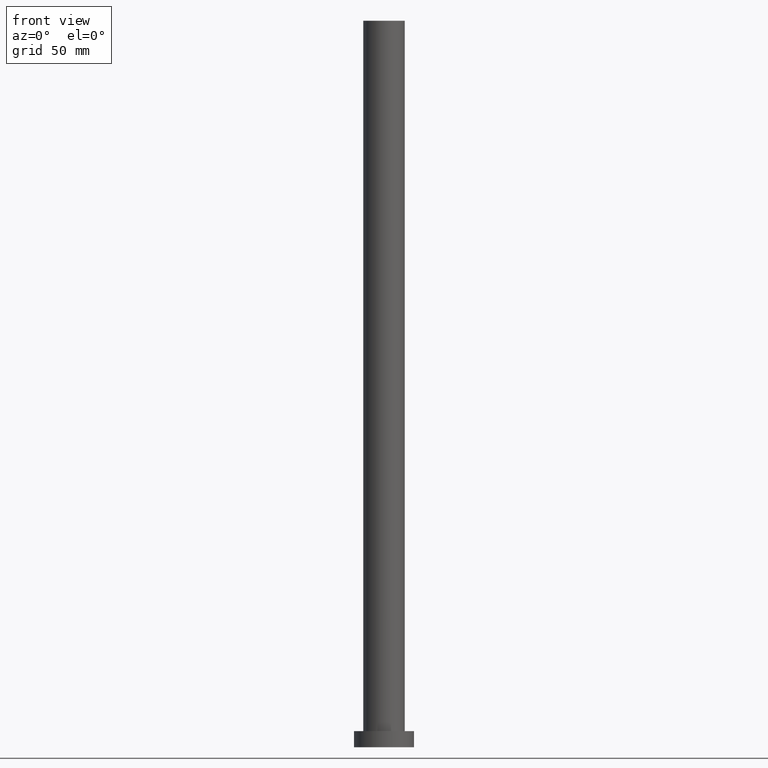
[diagram: clean part render]
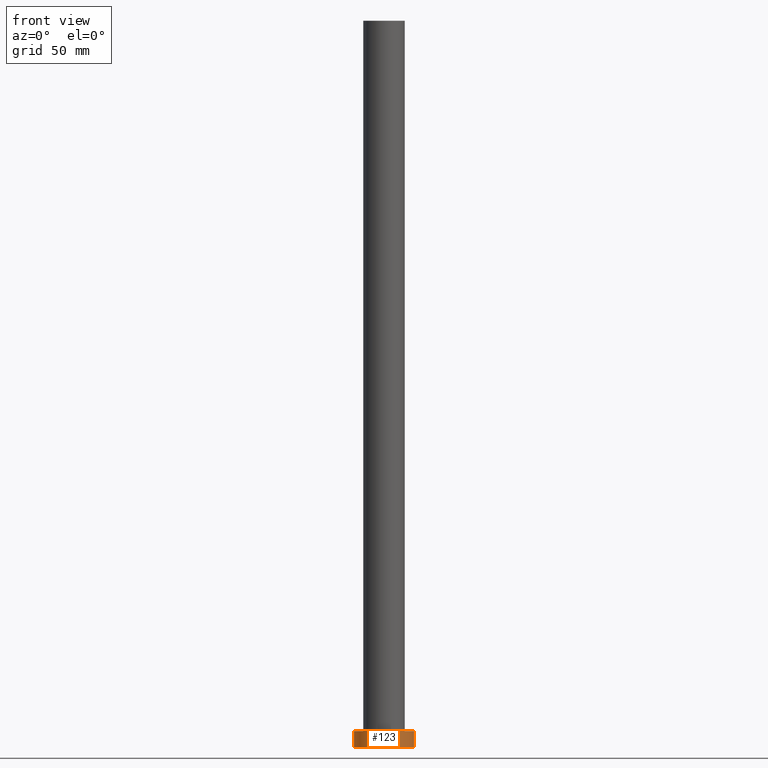
[diagram: same view with one face highlighted and labeled with its STEP entity id]
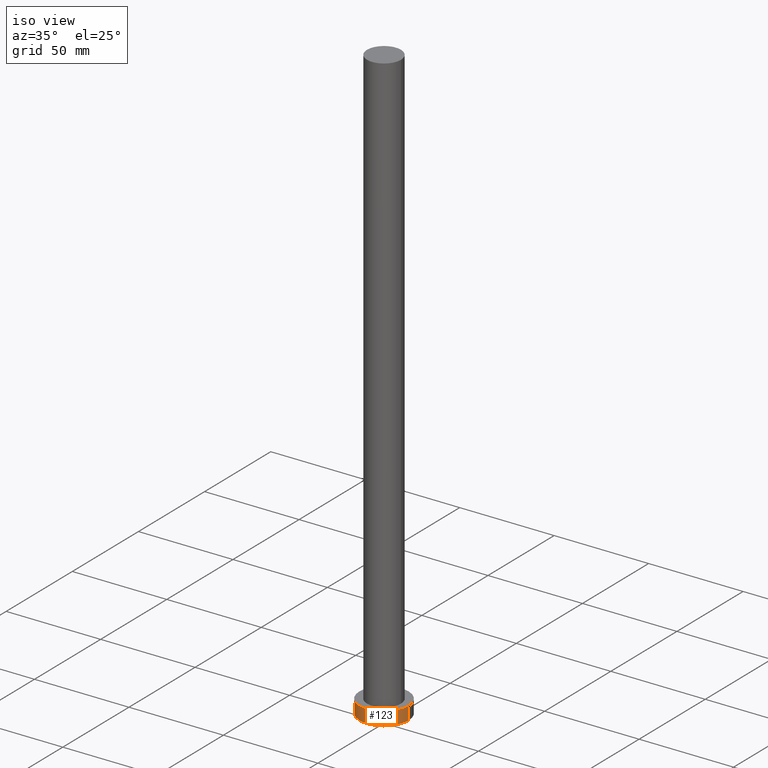
[diagram: same view with one face highlighted and labeled with its STEP entity id]
A machine part, front view. The second image highlights one B-rep face of the part: STEP entity #123.
A second angle (iso view) of the same face is appended — the face is thin or edge-on in the first view.
In plain terms, the highlighted cylindrical surface (edge-blend (fillet) strip) has radius 13 mm, axis along (-0, -0, -1).
Its self-contained STEP definition (entity closure, byte-faithful):
#7 = CARTESIAN_POINT ( 'NONE',  ( 0.000000000000000000, 0.000000000000000000, 7.000000000000000000 ) ) ;
#18 = ORIENTED_EDGE ( 'NONE', *, *, #107, .F. ) ;
#22 = VERTEX_POINT ( 'NONE', #43 ) ;
#25 = CARTESIAN_POINT ( 'NONE',  ( -13.00000000000000178, 0.000000000000000000, 7.000000000000000000 ) ) ;
#35 = CIRCLE ( 'NONE', #172, 13.00000000000000178 ) ;
#36 = EDGE_CURVE ( 'NONE', #149, #22, #35, .T. ) ;
#38 = ORIENTED_EDGE ( 'NONE', *, *, #197, .F. ) ;
#43 = CARTESIAN_POINT ( 'NONE',  ( 13.00000000000000178, 1.592040838891559293E-15, 0.000000000000000000 ) ) ;
#49 = CARTESIAN_POINT ( 'NONE',  ( -13.00000000000000178, 0.000000000000000000, 7.000000000000000000 ) ) ;
#63 = DIRECTION ( 'NONE',  ( 1.000000000000000000, 0.000000000000000000, 0.000000000000000000 ) ) ;
#74 = DIRECTION ( 'NONE',  ( -0.000000000000000000, -0.000000000000000000, -1.000000000000000000 ) ) ;
#78 = EDGE_LOOP ( 'NONE', ( #38, #18, #116, #170 ) ) ;
#81 = DIRECTION ( 'NONE',  ( 0.000000000000000000, 0.000000000000000000, 1.000000000000000000 ) ) ;
#88 = CARTESIAN_POINT ( 'NONE',  ( 0.000000000000000000, 0.000000000000000000, 7.000000000000000000 ) ) ;
#92 = LINE ( 'NONE', #143, #234 ) ;
#95 = AXIS2_PLACEMENT_3D ( 'NONE', #7, #181, #224 ) ;
#96 = VERTEX_POINT ( 'NONE', #113 ) ;
#97 = DIRECTION ( 'NONE',  ( -0.000000000000000000, -0.000000000000000000, -1.000000000000000000 ) ) ;
#107 = EDGE_CURVE ( 'NONE', #156, #96, #140, .T. ) ;
#113 = CARTESIAN_POINT ( 'NONE',  ( 13.00000000000000178, 1.592040838891559293E-15, 7.000000000000000000 ) ) ;
#116 = ORIENTED_EDGE ( 'NONE', *, *, #159, .T. ) ;
#123 = ADVANCED_FACE ( 'NONE', ( #135 ), #146, .T. ) ;
#132 = LINE ( 'NONE', #49, #190 ) ;
#135 = FACE_OUTER_BOUND ( 'NONE', #78, .T. ) ;
#140 = CIRCLE ( 'NONE', #254, 13.00000000000000178 ) ;
#143 = CARTESIAN_POINT ( 'NONE',  ( 13.00000000000000178, 1.592040838891559293E-15, 7.000000000000000000 ) ) ;
#145 = DIRECTION ( 'NONE',  ( 0.000000000000000000, 0.000000000000000000, 1.000000000000000000 ) ) ;
#146 = CYLINDRICAL_SURFACE ( 'NONE', #95, 13.00000000000000178 ) ;
#149 = VERTEX_POINT ( 'NONE', #248 ) ;
#156 = VERTEX_POINT ( 'NONE', #25 ) ;
#159 = EDGE_CURVE ( 'NONE', #156, #149, #132, .T. ) ;
#170 = ORIENTED_EDGE ( 'NONE', *, *, #36, .T. ) ;
#172 = AXIS2_PLACEMENT_3D ( 'NONE', #177, #81, #63 ) ;
#177 = CARTESIAN_POINT ( 'NONE',  ( 0.000000000000000000, 0.000000000000000000, 0.000000000000000000 ) ) ;
#181 = DIRECTION ( 'NONE',  ( -0.000000000000000000, -0.000000000000000000, -1.000000000000000000 ) ) ;
#190 = VECTOR ( 'NONE', #97, 1000.000000000000000 ) ;
#197 = EDGE_CURVE ( 'NONE', #96, #22, #92, .T. ) ;
#207 = DIRECTION ( 'NONE',  ( 1.000000000000000000, 0.000000000000000000, 0.000000000000000000 ) ) ;
#224 = DIRECTION ( 'NONE',  ( -1.000000000000000000, 0.000000000000000000, 0.000000000000000000 ) ) ;
#234 = VECTOR ( 'NONE', #74, 1000.000000000000000 ) ;
#248 = CARTESIAN_POINT ( 'NONE',  ( -13.00000000000000178, 0.000000000000000000, 0.000000000000000000 ) ) ;
#254 = AXIS2_PLACEMENT_3D ( 'NONE', #88, #145, #207 ) ;